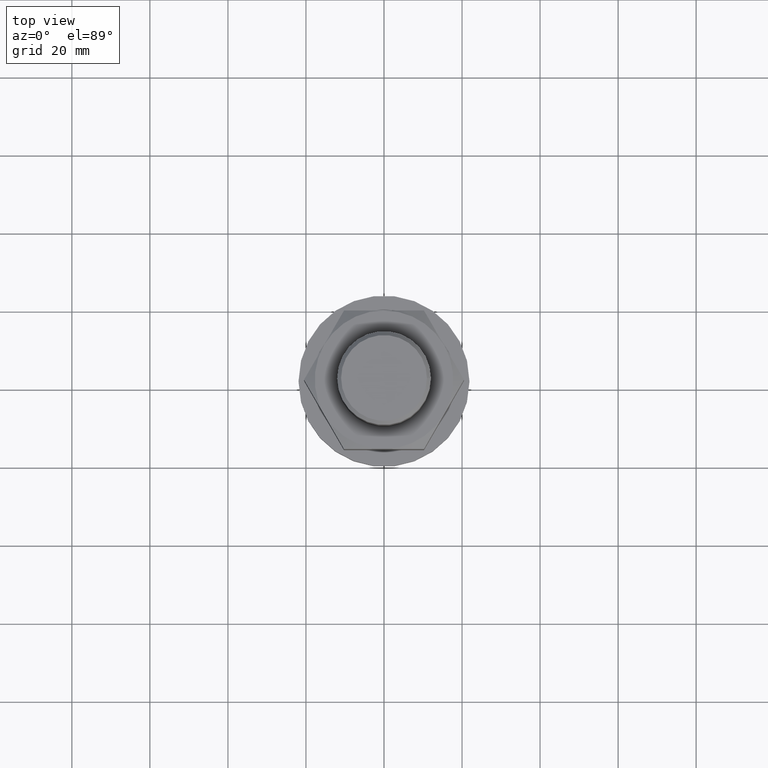
[diagram: clean part render]
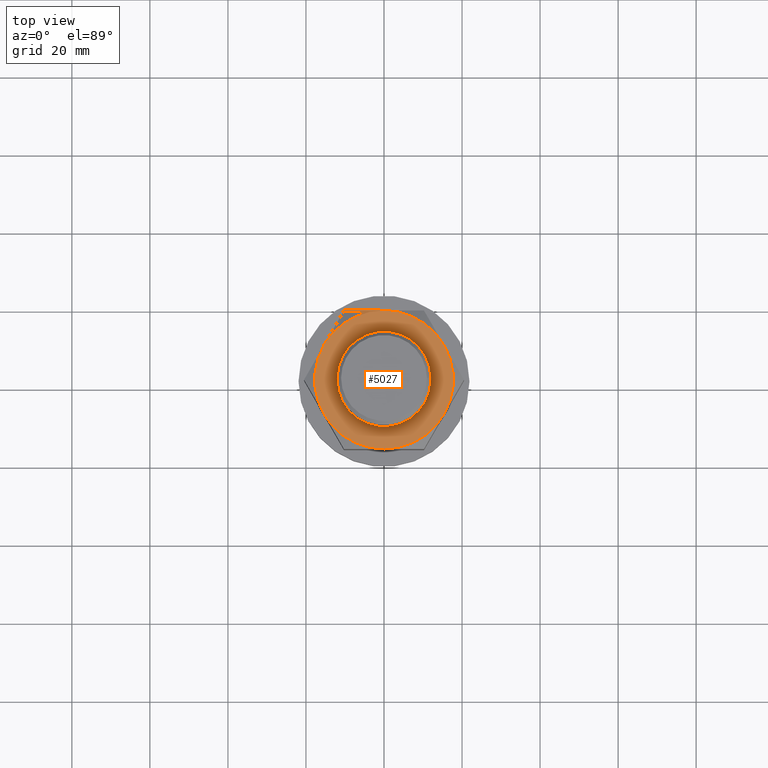
[diagram: same view with one face highlighted and labeled with its STEP entity id]
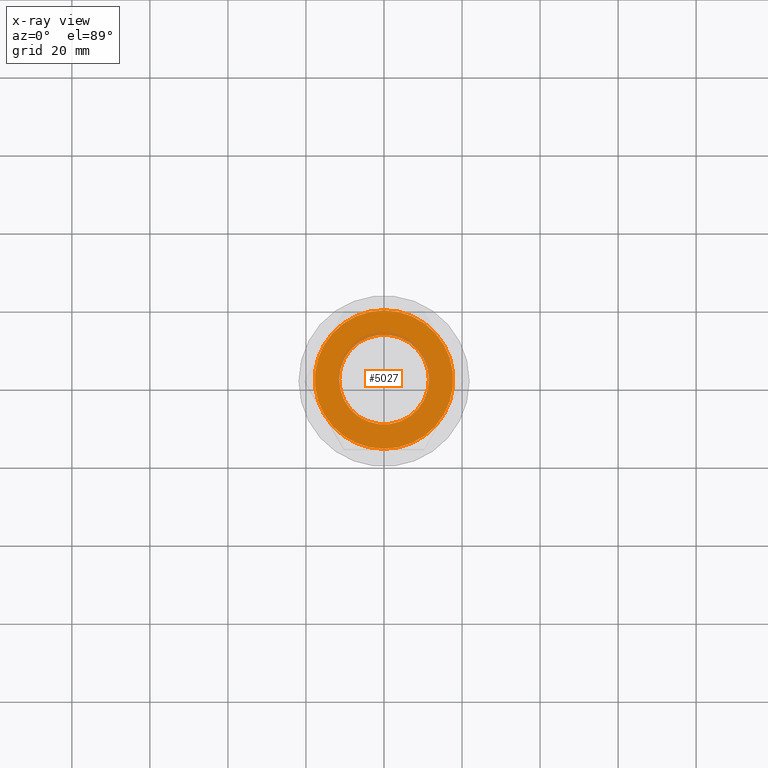
[diagram: x-ray of the same camera — body ghosted, the highlighted face saturated]
A machine part, top view. The second image highlights one B-rep face of the part: STEP entity #5027.
The next image is the same camera in x-ray: the body ghosted, the highlighted face saturated — about 6% of this face is hidden behind the body in this view.
In plain terms, the highlighted planar face has unit normal (0, 0, -1).
Its self-contained STEP definition (entity closure, byte-faithful):
#1 = CIRCLE ( 'NONE', #4346, 17.74999999999988631 ) ;
#71 = DIRECTION ( 'NONE',  ( 1.000000000000000000, 3.641531520770489471E-14, 0.000000000000000000 ) ) ;
#75 = AXIS2_PLACEMENT_3D ( 'NONE', #3674, #804, #6132 ) ;
#132 = VERTEX_POINT ( 'NONE', #2162 ) ;
#244 = EDGE_CURVE ( 'NONE', #287, #132, #1637, .T. ) ;
#287 = VERTEX_POINT ( 'NONE', #4237 ) ;
#360 = CARTESIAN_POINT ( 'NONE',  ( 0.000000000000000000, -1.667805179097530083E-45, -10.19999999999998685 ) ) ;
#415 = EDGE_LOOP ( 'NONE', ( #6003 ) ) ;
#648 = EDGE_CURVE ( 'NONE', #132, #2130, #5581, .T. ) ;
#804 = DIRECTION ( 'NONE',  ( -2.052683297350801395E-47, -2.873756616291147817E-46, -1.000000000000000000 ) ) ;
#843 = DIRECTION ( 'NONE',  ( 1.000000000000000000, -2.229008395045601301E-65, 2.052683297350802610E-47 ) ) ;
#913 = DIRECTION ( 'NONE',  ( 1.000000000000000000, -8.881784197001193948E-15, 0.000000000000000000 ) ) ;
#924 = CARTESIAN_POINT ( 'NONE',  ( 15.37195091717368634, -8.874999999999898748, -10.19999999999998685 ) ) ;
#937 = VERTEX_POINT ( 'NONE', #5079 ) ;
#1016 = EDGE_CURVE ( 'NONE', #937, #1670, #2313, .T. ) ;
#1060 = DIRECTION ( 'NONE',  ( 1.000000000000000000, 6.394884621840860021E-14, 0.000000000000000000 ) ) ;
#1180 = AXIS2_PLACEMENT_3D ( 'NONE', #1327, #1370, #5655 ) ;
#1194 = VERTEX_POINT ( 'NONE', #924 ) ;
#1319 = AXIS2_PLACEMENT_3D ( 'NONE', #5935, #4457, #1060 ) ;
#1327 = CARTESIAN_POINT ( 'NONE',  ( 5.715050110250640069E-16, 1.500353833534879518E-16, -10.19999999999998685 ) ) ;
#1335 = DIRECTION ( 'NONE',  ( 2.052683297350801395E-47, 2.873756616291147817E-46, 1.000000000000000000 ) ) ;
#1370 = DIRECTION ( 'NONE',  ( -2.052683297350801395E-47, -2.873756616291147817E-46, -1.000000000000000000 ) ) ;
#1425 = ORIENTED_EDGE ( 'NONE', *, *, #4492, .T. ) ;
#1610 = AXIS2_PLACEMENT_3D ( 'NONE', #4248, #5668, #5215 ) ;
#1629 = VERTEX_POINT ( 'NONE', #5922 ) ;
#1637 = CIRCLE ( 'NONE', #75, 17.74999999999988631 ) ;
#1670 = VERTEX_POINT ( 'NONE', #3515 ) ;
#1724 = CIRCLE ( 'NONE', #1319, 17.74999999999988631 ) ;
#2045 = ORIENTED_EDGE ( 'NONE', *, *, #648, .T. ) ;
#2048 = ORIENTED_EDGE ( 'NONE', *, *, #1016, .T. ) ;
#2130 = VERTEX_POINT ( 'NONE', #2245 ) ;
#2162 = CARTESIAN_POINT ( 'NONE',  ( 5.715050110250625278E-16, 17.74999999999979750, -10.19999999999998685 ) ) ;
#2245 = CARTESIAN_POINT ( 'NONE',  ( 15.37195091717368101, 8.874999999999905853, -10.19999999999998685 ) ) ;
#2259 = FACE_OUTER_BOUND ( 'NONE', #2865, .T. ) ;
#2313 = CIRCLE ( 'NONE', #1180, 17.74999999999988631 ) ;
#2344 = PLANE ( 'NONE',  #4828 ) ;
#2865 = EDGE_LOOP ( 'NONE', ( #4928, #6172, #2048, #1425, #5225, #2045 ) ) ;
#2936 = EDGE_CURVE ( 'NONE', #1194, #937, #4977, .T. ) ;
#2949 = EDGE_CURVE ( 'NONE', #1629, #1629, #3690, .T. ) ;
#3053 = DIRECTION ( 'NONE',  ( -2.052683297350801395E-47, -2.873756616291147817E-46, -1.000000000000000000 ) ) ;
#3072 = EDGE_CURVE ( 'NONE', #2130, #1194, #1724, .T. ) ;
#3288 = DIRECTION ( 'NONE',  ( -2.052683297350801395E-47, -2.873756616291147817E-46, -1.000000000000000000 ) ) ;
#3515 = CARTESIAN_POINT ( 'NONE',  ( -15.37195091717368456, -8.874999999999900524, -10.19999999999998685 ) ) ;
#3674 = CARTESIAN_POINT ( 'NONE',  ( 5.715050110250640069E-16, 1.500353833534879518E-16, -10.19999999999998685 ) ) ;
#3690 = CIRCLE ( 'NONE', #4822, 11.49999999999992362 ) ;
#3758 = DIRECTION ( 'NONE',  ( -2.052683297350802610E-47, 2.873756616291147817E-46, 1.000000000000000000 ) ) ;
#4237 = CARTESIAN_POINT ( 'NONE',  ( -15.37195091717368811, 8.874999999999898748, -10.19999999999998685 ) ) ;
#4248 = CARTESIAN_POINT ( 'NONE',  ( 0.000000000000000000, 2.092587005581558807E-16, -10.19999999999998685 ) ) ;
#4265 = CARTESIAN_POINT ( 'NONE',  ( 5.715050110250640069E-16, 1.500353833534879518E-16, -10.19999999999998685 ) ) ;
#4282 = CARTESIAN_POINT ( 'NONE',  ( 0.000000000000000000, -1.667805179097530083E-45, -10.19999999999998685 ) ) ;
#4345 = DIRECTION ( 'NONE',  ( 1.000000000000000000, 0.000000000000000000, 0.000000000000000000 ) ) ;
#4346 = AXIS2_PLACEMENT_3D ( 'NONE', #5485, #3053, #71 ) ;
#4457 = DIRECTION ( 'NONE',  ( -2.052683297350801395E-47, -2.873756616291147817E-46, -1.000000000000000000 ) ) ;
#4492 = EDGE_CURVE ( 'NONE', #1670, #287, #1, .T. ) ;
#4622 = AXIS2_PLACEMENT_3D ( 'NONE', #4265, #3288, #913 ) ;
#4822 = AXIS2_PLACEMENT_3D ( 'NONE', #4282, #1335, #4345 ) ;
#4828 = AXIS2_PLACEMENT_3D ( 'NONE', #360, #3758, #843 ) ;
#4928 = ORIENTED_EDGE ( 'NONE', *, *, #3072, .T. ) ;
#4977 = CIRCLE ( 'NONE', #4622, 17.74999999999988631 ) ;
#5027 = ADVANCED_FACE ( 'NONE', ( #6119, #2259 ), #2344, .F. ) ;
#5079 = CARTESIAN_POINT ( 'NONE',  ( 5.715050110250640069E-16, -17.74999999999979750, -10.19999999999998685 ) ) ;
#5215 = DIRECTION ( 'NONE',  ( -8.252768935388529602E-66, 1.000000000000000000, 0.000000000000000000 ) ) ;
#5225 = ORIENTED_EDGE ( 'NONE', *, *, #244, .T. ) ;
#5485 = CARTESIAN_POINT ( 'NONE',  ( 5.715050110250640069E-16, 1.500353833534879518E-16, -10.19999999999998685 ) ) ;
#5581 = CIRCLE ( 'NONE', #1610, 17.74999999999988631 ) ;
#5655 = DIRECTION ( 'NONE',  ( 1.000000000000000000, -8.881784197001193948E-15, 0.000000000000000000 ) ) ;
#5668 = DIRECTION ( 'NONE',  ( -2.052683297350818411E-47, 2.051555887825081212E-17, -1.000000000000000000 ) ) ;
#5922 = CARTESIAN_POINT ( 'NONE',  ( 11.49999999999992362, -1.667805179097530083E-45, -10.19999999999998685 ) ) ;
#5935 = CARTESIAN_POINT ( 'NONE',  ( 5.715050110250640069E-16, 1.500353833534879518E-16, -10.19999999999998685 ) ) ;
#6003 = ORIENTED_EDGE ( 'NONE', *, *, #2949, .T. ) ;
#6119 = FACE_BOUND ( 'NONE', #415, .T. ) ;
#6132 = DIRECTION ( 'NONE',  ( 1.000000000000000000, -2.664535259100358027E-14, 0.000000000000000000 ) ) ;
#6172 = ORIENTED_EDGE ( 'NONE', *, *, #2936, .T. ) ;